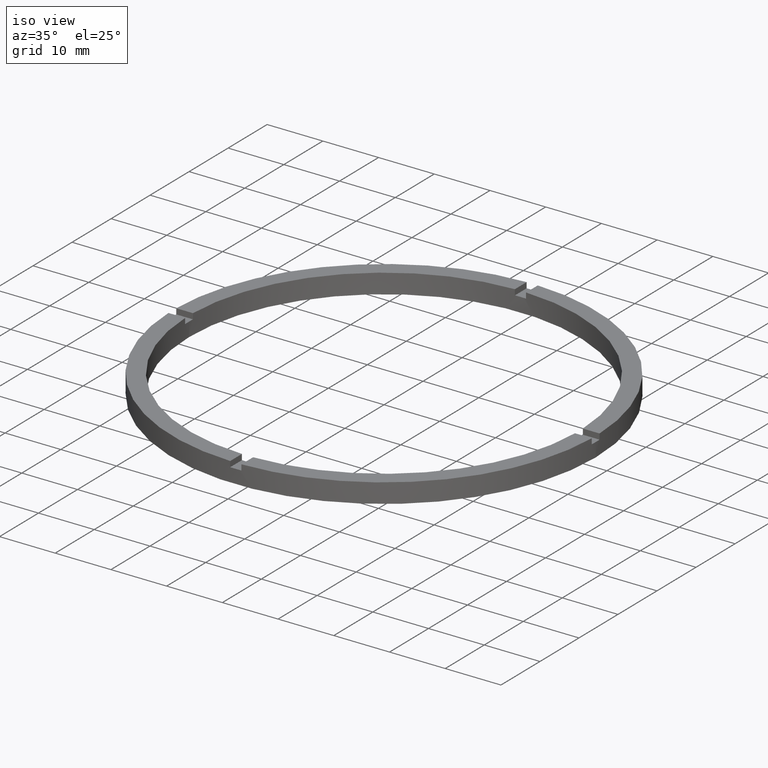
[diagram: clean part render]
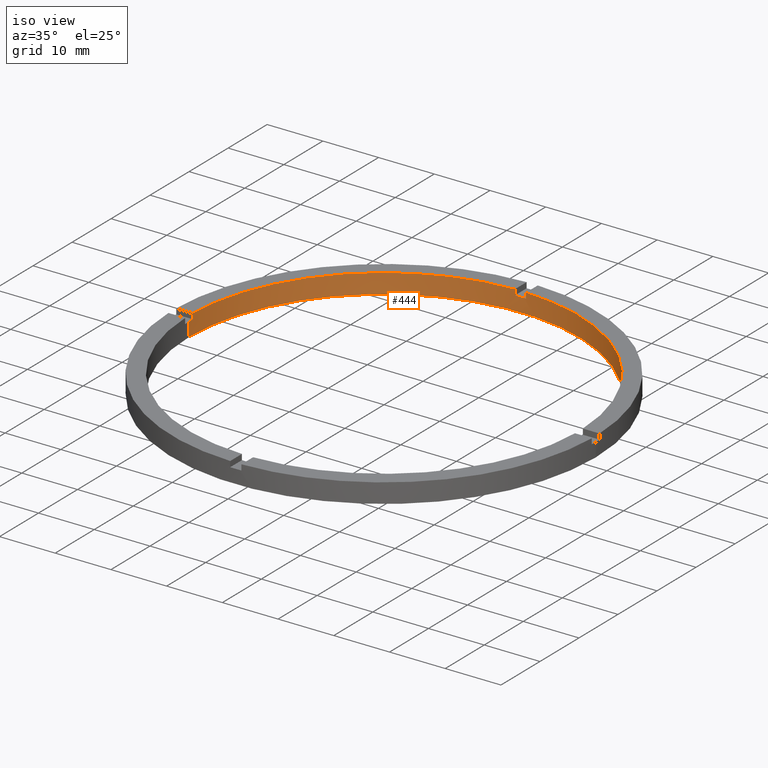
[diagram: same view with one face highlighted and labeled with its STEP entity id]
A machine part, iso view. The second image highlights one B-rep face of the part: STEP entity #444.
In plain terms, the highlighted cylindrical surface (partial cylindrical patch) has radius 35 mm, axis along (-0, -0, -1).
Its self-contained STEP definition (entity closure, byte-faithful):
#1 = CARTESIAN_POINT ( 'NONE',  ( -35.00000000000000711, 0.000000000000000000, 3.500000000000000000 ) ) ;
#2 = EDGE_CURVE ( 'NONE', #739, #466, #202, .T. ) ;
#11 = EDGE_CURVE ( 'NONE', #749, #383, #189, .T. ) ;
#24 = VECTOR ( 'NONE', #555, 1000.000000000000000 ) ;
#28 = CARTESIAN_POINT ( 'NONE',  ( -34.98571136907180801, 0.9999999999999729106, 2.500000000000000000 ) ) ;
#32 = AXIS2_PLACEMENT_3D ( 'NONE', #298, #184, #261 ) ;
#43 = FACE_OUTER_BOUND ( 'NONE', #231, .T. ) ;
#51 = CYLINDRICAL_SURFACE ( 'NONE', #380, 35.00000000000000711 ) ;
#61 = LINE ( 'NONE', #431, #71 ) ;
#65 = CIRCLE ( 'NONE', #536, 35.00000000000000711 ) ;
#71 = VECTOR ( 'NONE', #128, 1000.000000000000000 ) ;
#85 = VERTEX_POINT ( 'NONE', #504 ) ;
#87 = AXIS2_PLACEMENT_3D ( 'NONE', #293, #413, #770 ) ;
#94 = VECTOR ( 'NONE', #657, 1000.000000000000000 ) ;
#122 = VERTEX_POINT ( 'NONE', #154 ) ;
#124 = ORIENTED_EDGE ( 'NONE', *, *, #137, .F. ) ;
#126 = ORIENTED_EDGE ( 'NONE', *, *, #2, .T. ) ;
#128 = DIRECTION ( 'NONE',  ( -0.000000000000000000, -0.000000000000000000, -1.000000000000000000 ) ) ;
#137 = EDGE_CURVE ( 'NONE', #760, #691, #441, .T. ) ;
#140 = DIRECTION ( 'NONE',  ( 0.000000000000000000, 0.000000000000000000, 1.000000000000000000 ) ) ;
#146 = CARTESIAN_POINT ( 'NONE',  ( 0.000000000000000000, 0.000000000000000000, 0.000000000000000000 ) ) ;
#147 = ORIENTED_EDGE ( 'NONE', *, *, #675, .F. ) ;
#148 = CARTESIAN_POINT ( 'NONE',  ( 0.9999999999999746869, 34.98571136907180801, 3.500000000000000000 ) ) ;
#154 = CARTESIAN_POINT ( 'NONE',  ( -1.000000000000025313, 34.98571136907180801, 3.500000000000000000 ) ) ;
#159 = VERTEX_POINT ( 'NONE', #544 ) ;
#162 = EDGE_CURVE ( 'NONE', #445, #159, #203, .T. ) ;
#174 = DIRECTION ( 'NONE',  ( -0.000000000000000000, -0.000000000000000000, -1.000000000000000000 ) ) ;
#182 = CARTESIAN_POINT ( 'NONE',  ( 0.000000000000000000, 0.000000000000000000, 2.500000000000000000 ) ) ;
#184 = DIRECTION ( 'NONE',  ( 0.000000000000000000, 0.000000000000000000, 1.000000000000000000 ) ) ;
#189 = CIRCLE ( 'NONE', #87, 35.00000000000000711 ) ;
#196 = DIRECTION ( 'NONE',  ( 0.000000000000000000, 0.000000000000000000, 1.000000000000000000 ) ) ;
#200 = DIRECTION ( 'NONE',  ( -0.000000000000000000, -0.000000000000000000, -1.000000000000000000 ) ) ;
#202 = CIRCLE ( 'NONE', #279, 35.00000000000000711 ) ;
#203 = CIRCLE ( 'NONE', #633, 35.00000000000000711 ) ;
#214 = CARTESIAN_POINT ( 'NONE',  ( -1.000000000000025313, 34.98571136907180801, 2.500000000000000000 ) ) ;
#219 = ORIENTED_EDGE ( 'NONE', *, *, #490, .T. ) ;
#225 = CARTESIAN_POINT ( 'NONE',  ( 0.9999999999999746869, 34.98571136907180801, 2.500000000000000000 ) ) ;
#231 = EDGE_LOOP ( 'NONE', ( #384, #219, #762, #745, #491, #695, #147, #443, #512, #126, #240, #124 ) ) ;
#240 = ORIENTED_EDGE ( 'NONE', *, *, #619, .T. ) ;
#241 = VERTEX_POINT ( 'NONE', #270 ) ;
#250 = DIRECTION ( 'NONE',  ( 0.000000000000000000, 0.000000000000000000, 1.000000000000000000 ) ) ;
#261 = DIRECTION ( 'NONE',  ( 1.000000000000000000, 0.000000000000000000, 0.000000000000000000 ) ) ;
#266 = CARTESIAN_POINT ( 'NONE',  ( -1.000000000000025313, 34.98571136907180801, 3.500000000000000000 ) ) ;
#270 = CARTESIAN_POINT ( 'NONE',  ( 34.98571136907181511, 0.9999999999998423483, 2.500000000000000000 ) ) ;
#276 = DIRECTION ( 'NONE',  ( 1.000000000000000000, 0.000000000000000000, 0.000000000000000000 ) ) ;
#279 = AXIS2_PLACEMENT_3D ( 'NONE', #182, #659, #582 ) ;
#293 = CARTESIAN_POINT ( 'NONE',  ( 0.000000000000000000, 0.000000000000000000, 2.500000000000000000 ) ) ;
#296 = CARTESIAN_POINT ( 'NONE',  ( -35.00000000000000711, 0.000000000000000000, 2.500000000000000000 ) ) ;
#298 = CARTESIAN_POINT ( 'NONE',  ( 0.000000000000000000, 0.000000000000000000, 3.500000000000000000 ) ) ;
#299 = EDGE_CURVE ( 'NONE', #641, #760, #546, .T. ) ;
#341 = CIRCLE ( 'NONE', #32, 35.00000000000000711 ) ;
#346 = VECTOR ( 'NONE', #140, 1000.000000000000000 ) ;
#369 = VECTOR ( 'NONE', #174, 1000.000000000000000 ) ;
#373 = LINE ( 'NONE', #1, #369 ) ;
#380 = AXIS2_PLACEMENT_3D ( 'NONE', #516, #682, #678 ) ;
#383 = VERTEX_POINT ( 'NONE', #214 ) ;
#384 = ORIENTED_EDGE ( 'NONE', *, *, #299, .F. ) ;
#385 = LINE ( 'NONE', #773, #94 ) ;
#405 = CARTESIAN_POINT ( 'NONE',  ( 35.00000000000000711, 4.286263797015737285E-15, 3.500000000000000000 ) ) ;
#413 = DIRECTION ( 'NONE',  ( 0.000000000000000000, -0.000000000000000000, 1.000000000000000000 ) ) ;
#424 = DIRECTION ( 'NONE',  ( 0.000000000000000000, 0.000000000000000000, 1.000000000000000000 ) ) ;
#431 = CARTESIAN_POINT ( 'NONE',  ( 34.98571136907181511, 0.9999999999998423483, 3.500000000000000000 ) ) ;
#435 = CARTESIAN_POINT ( 'NONE',  ( 35.00000000000000711, 4.286263797015737285E-15, 2.500000000000000000 ) ) ;
#441 = CIRCLE ( 'NONE', #673, 35.00000000000000711 ) ;
#443 = ORIENTED_EDGE ( 'NONE', *, *, #520, .T. ) ;
#444 = ADVANCED_FACE ( 'NONE', ( #43 ), #51, .F. ) ;
#445 = VERTEX_POINT ( 'NONE', #753 ) ;
#466 = VERTEX_POINT ( 'NONE', #296 ) ;
#490 = EDGE_CURVE ( 'NONE', #641, #241, #65, .T. ) ;
#491 = ORIENTED_EDGE ( 'NONE', *, *, #683, .F. ) ;
#497 = DIRECTION ( 'NONE',  ( 1.000000000000000000, 0.000000000000000000, 0.000000000000000000 ) ) ;
#504 = CARTESIAN_POINT ( 'NONE',  ( -34.98571136907180801, 0.9999999999999729106, 3.500000000000000000 ) ) ;
#512 = ORIENTED_EDGE ( 'NONE', *, *, #573, .F. ) ;
#516 = CARTESIAN_POINT ( 'NONE',  ( 0.000000000000000000, 0.000000000000000000, 3.500000000000000000 ) ) ;
#520 = EDGE_CURVE ( 'NONE', #122, #85, #341, .T. ) ;
#526 = EDGE_CURVE ( 'NONE', #445, #241, #61, .T. ) ;
#536 = AXIS2_PLACEMENT_3D ( 'NONE', #566, #250, #720 ) ;
#544 = CARTESIAN_POINT ( 'NONE',  ( 0.9999999999999746869, 34.98571136907180801, 3.500000000000000000 ) ) ;
#546 = LINE ( 'NONE', #405, #24 ) ;
#555 = DIRECTION ( 'NONE',  ( -0.000000000000000000, -0.000000000000000000, -1.000000000000000000 ) ) ;
#566 = CARTESIAN_POINT ( 'NONE',  ( 0.000000000000000000, 0.000000000000000000, 2.500000000000000000 ) ) ;
#569 = LINE ( 'NONE', #148, #346 ) ;
#573 = EDGE_CURVE ( 'NONE', #739, #85, #385, .T. ) ;
#574 = CARTESIAN_POINT ( 'NONE',  ( 35.00000000000000711, 4.286263797015737285E-15, 0.000000000000000000 ) ) ;
#582 = DIRECTION ( 'NONE',  ( 1.000000000000000000, 0.000000000000000000, 0.000000000000000000 ) ) ;
#589 = CARTESIAN_POINT ( 'NONE',  ( 0.000000000000000000, 0.000000000000000000, 3.500000000000000000 ) ) ;
#609 = VECTOR ( 'NONE', #200, 1000.000000000000000 ) ;
#616 = LINE ( 'NONE', #266, #609 ) ;
#619 = EDGE_CURVE ( 'NONE', #466, #691, #373, .T. ) ;
#633 = AXIS2_PLACEMENT_3D ( 'NONE', #589, #424, #497 ) ;
#641 = VERTEX_POINT ( 'NONE', #435 ) ;
#657 = DIRECTION ( 'NONE',  ( 0.000000000000000000, 0.000000000000000000, 1.000000000000000000 ) ) ;
#659 = DIRECTION ( 'NONE',  ( 0.000000000000000000, 0.000000000000000000, 1.000000000000000000 ) ) ;
#673 = AXIS2_PLACEMENT_3D ( 'NONE', #146, #196, #276 ) ;
#675 = EDGE_CURVE ( 'NONE', #122, #383, #616, .T. ) ;
#678 = DIRECTION ( 'NONE',  ( -1.000000000000000000, 0.000000000000000000, 0.000000000000000000 ) ) ;
#682 = DIRECTION ( 'NONE',  ( -0.000000000000000000, -0.000000000000000000, -1.000000000000000000 ) ) ;
#683 = EDGE_CURVE ( 'NONE', #749, #159, #569, .T. ) ;
#691 = VERTEX_POINT ( 'NONE', #709 ) ;
#695 = ORIENTED_EDGE ( 'NONE', *, *, #11, .T. ) ;
#709 = CARTESIAN_POINT ( 'NONE',  ( -35.00000000000000711, 0.000000000000000000, 0.000000000000000000 ) ) ;
#720 = DIRECTION ( 'NONE',  ( 1.000000000000000000, 0.000000000000000000, 0.000000000000000000 ) ) ;
#739 = VERTEX_POINT ( 'NONE', #28 ) ;
#745 = ORIENTED_EDGE ( 'NONE', *, *, #162, .T. ) ;
#749 = VERTEX_POINT ( 'NONE', #225 ) ;
#753 = CARTESIAN_POINT ( 'NONE',  ( 34.98571136907181511, 0.9999999999998423483, 3.500000000000000000 ) ) ;
#760 = VERTEX_POINT ( 'NONE', #574 ) ;
#762 = ORIENTED_EDGE ( 'NONE', *, *, #526, .F. ) ;
#770 = DIRECTION ( 'NONE',  ( 1.000000000000000000, 0.000000000000000000, 0.000000000000000000 ) ) ;
#773 = CARTESIAN_POINT ( 'NONE',  ( -34.98571136907180801, 0.9999999999999729106, 3.500000000000000000 ) ) ;